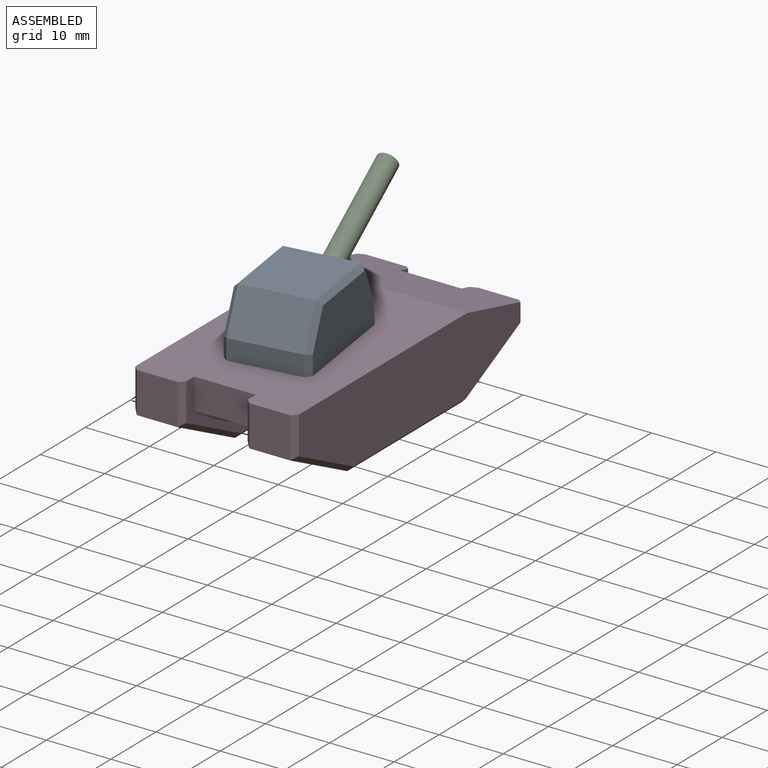
[diagram: assembled view]
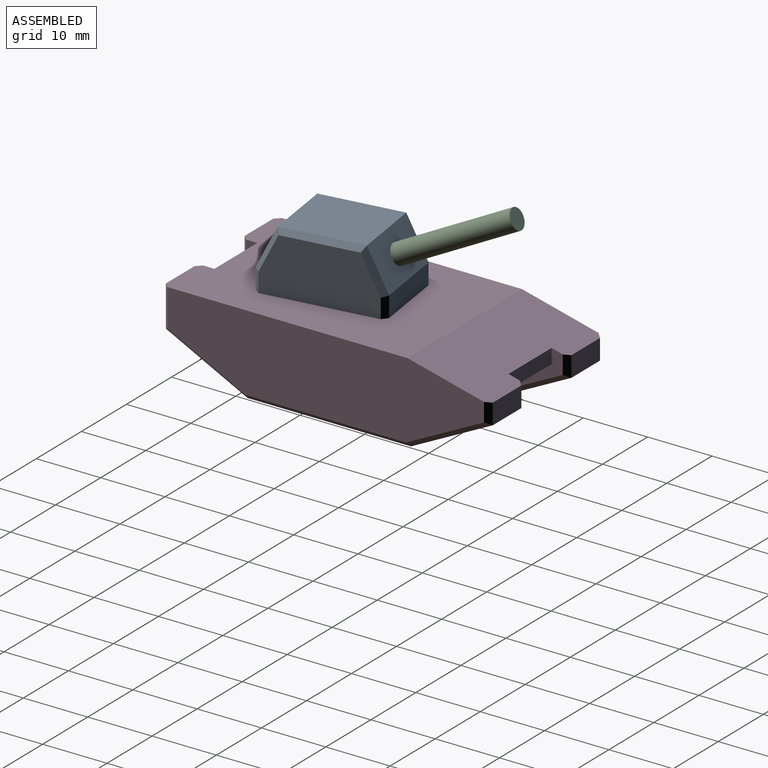
[diagram: assembled view, second angle]
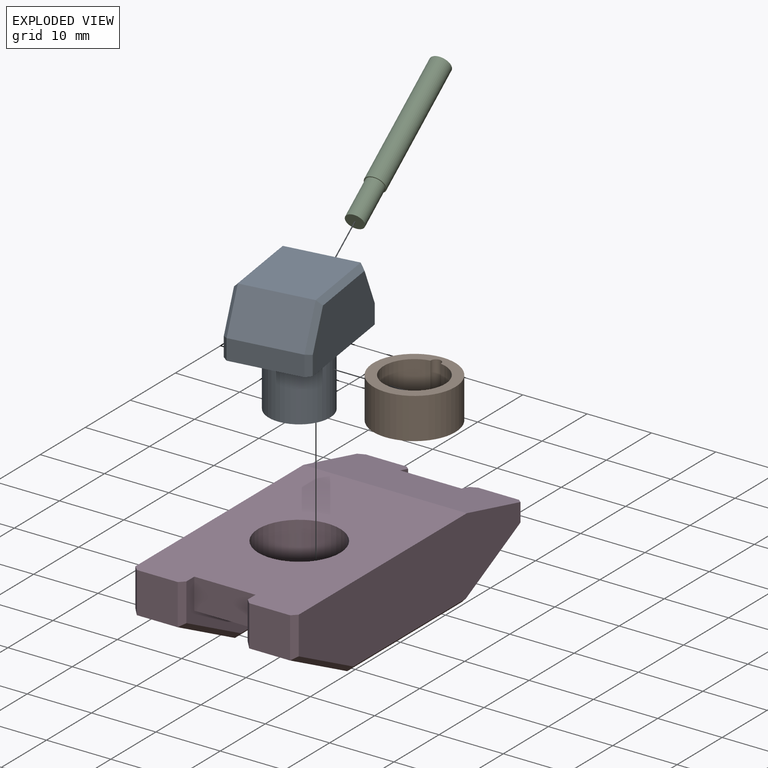
[diagram: exploded view]
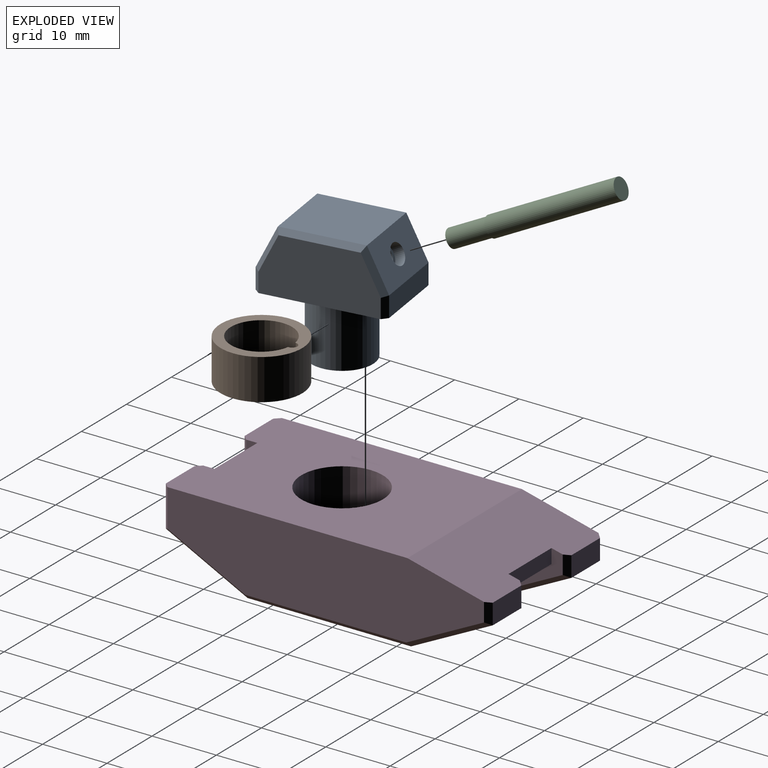
[diagram: exploded view, second angle]
ASSEMBLY  parts=4 mates=4
PART A: 24 faces, bbox 12.7x19.1x19.1 mm
  f0: plane 19.05x12.7mm, normal (0,0,-1), area 169.4mm2, adj f2,f3,f4,f5,f6,f10,f14,f15
  f1: plane 9.53x9.53mm, normal (0,0,-1), area 71.3mm2, adj f2
  f2: cylinder r=4.76mm len=9.53mm, axis (0,0,1), area 285mm2, adj f0,f1
  f3: plane 17.46x8.73mm, normal (-1,0,0), area 136mm2, adj f0,f10,f11,f12,f13,f14
  f4: plane 11.11x3.18mm, normal (0,1,0), area 35.3mm2, adj f0,f8,f10,f19
  f5: plane 17.46x8.73mm, normal (1,0,0), area 136mm2, adj f0,f15,f16,f17,f18,f19
  f6: plane 11.11x3.18mm, normal (0,-1,0), area 35.3mm2, adj f0,f9,f14,f15
  f7: plane 12.7x11.11mm, normal (0,0,1), area 141.1mm2, adj f8,f9,f12,f17
  f8: plane 11.11x6.35mm, normal (0,0.89,0.45), area 78.9mm2, adj f4,f7,f11,f18
  f9: plane 11.11x6.35mm, normal (0,-0.89,0.45), area 71mm2, adj f6,f7,f13,f16,f22
  f10: plane 3.18x0.79mm, normal (-0.71,0.71,0), area 3.5mm2, adj f0,f3,f4,f11
  f11: plane 6.54x3.67mm, normal (-0.71,0.63,0.32), area 7.6mm2, adj f3,f8,f10,f12
  f12: plane 12.7x0.79mm, normal (-0.71,0,0.71), area 13.7mm2, adj f3,f7,f11,f13
  f13: plane 6.54x3.67mm, normal (-0.71,-0.63,0.32), area 7.6mm2, adj f3,f9,f12,f14
  f14: plane 3.18x0.79mm, normal (-0.71,-0.71,0), area 3.5mm2, adj f0,f3,f6,f13
  f15: plane 3.18x0.79mm, normal (0.71,-0.71,0), area 3.5mm2, adj f0,f5,f6,f16
  f16: plane 6.54x3.67mm, normal (0.71,-0.63,0.32), area 7.6mm2, adj f5,f9,f15,f17
  f17: plane 12.7x0.79mm, normal (0.71,0,0.71), area 13.7mm2, adj f5,f7,f16,f18
  f18: plane 6.54x3.67mm, normal (0.71,0.63,0.32), area 7.6mm2, adj f5,f8,f17,f19
  f19: plane 3.18x0.79mm, normal (0.71,0.71,0), area 3.5mm2, adj f0,f4,f5,f18
  f20: cylinder r=1.13mm len=8.11mm, axis (0,-0.89,0.45), area 56.4mm2, adj f21,f23
  f21: plane 3.18x2.84mm, normal (0,-0.89,0.45), area 3.9mm2, adj f20,f22
  f22: cylinder r=1.59mm len=3.55mm, axis (0,-0.89,0.45), area 15.8mm2, adj f9,f21
  f23: cone r=0mm half-angle=59deg, axis (0,-0.89,0.45), area 4.7mm2, adj f20
PART B: 5 faces, bbox 12.7x12.7x6.4 mm
  f0: cylinder r=4.76mm len=9.53mm, axis (0,0,-1), area 179.9mm2, adj f1,f3,f4
  f1: cylinder r=0.79mm len=6.35mm, axis (0,0,-1), area 16.7mm2, adj f0,f3,f4
  f2: cylinder r=6.35mm len=12.7mm, axis (0,0,-1), area 253.4mm2, adj f3,f4
  f3: plane 12.7x12.7mm, normal (0,0,1), area 54.4mm2, adj f0,f1,f2
  f4: plane 12.7x12.7mm, normal (0,0,-1), area 54.4mm2, adj f0,f1,f2
PART C: 5 faces, bbox 3.2x27x3.2 mm
  f0: plane 3.18x3.18mm, normal (0,-1,0), area 7.9mm2, adj f1
  f1: cylinder r=1.59mm len=20.64mm, axis (0,1,0), area 205.8mm2, adj f0,f2
  f2: plane 3.18x3.18mm, normal (0,1,0), area 1.6mm2, adj f1,f3
  f3: cylinder r=1.42mm len=6.35mm, axis (0,1,0), area 56.8mm2, adj f2,f4
  f4: plane 2.85x2.85mm, normal (0,1,0), area 6.4mm2, adj f3
PART D: 43 faces, bbox 25.4x50.8x12.7 mm
  f0: plane 6.35x6.35mm, normal (0,-1,0), area 40.3mm2, adj f7,f10,f28,f33
  f1: plane 6.35x3.18mm, normal (0,1,0), area 20.2mm2, adj f4,f9,f23,f42
  f2: plane 10.76x9.53mm, normal (0,0.45,-0.89), area 114.6mm2, adj f3,f18,f19,f21
  f3: plane 24.2x9.53mm, normal (0,0,-1), area 230.5mm2, adj f2,f18,f19,f20
  f4: plane 12.7x6.35mm, normal (0,0.45,-0.89), area 90.2mm2, adj f1,f12,f24,f41
  f5: plane 12.7x6.35mm, normal (0,-0.45,-0.89), area 90.2mm2, adj f11,f12,f26,f39
  f6: plane 25.4x6.35mm, normal (0,0,-1), area 161.3mm2, adj f7,f8,f30,f35
  f7: plane 12.7x6.35mm, normal (0,-0.45,-0.89), area 90.2mm2, adj f0,f6,f29,f34
  f8: plane 12.7x6.35mm, normal (0,0.45,-0.89), area 90.2mm2, adj f6,f13,f31,f36
  f9: plane 25.4x12.7mm, normal (0,0.24,0.97), area 306.3mm2, adj f1,f10,f13,f14,f15,f18,f19,f21
  f10: plane 38.1x25.4mm, normal (0,0,1), area 815.6mm2, adj f0,f9,f11,f14,f15,f16,f18,f19
  f11: plane 6.35x6.35mm, normal (0,-1,0), area 40.3mm2, adj f5,f10,f27,f38
  f12: plane 25.4x6.35mm, normal (0,0,-1), area 161.3mm2, adj f4,f5,f25,f40
  f13: plane 6.35x3.18mm, normal (0,1,0), area 20.2mm2, adj f8,f9,f32,f37
  f14: plane 49.21x11.91mm, normal (1,0,0), area 495.1mm2, adj f9,f10,f38,f39,f40,f41,f42
  f15: plane 49.21x11.91mm, normal (-1,0,0), area 495.1mm2, adj f9,f10,f33,f34,f35,f36,f37
  f16: cylinder r=6.35mm len=12.7mm, axis (0,0,1), area 380mm2, adj f10,f17
  f17: plane 12.7x12.7mm, normal (0,0,1), area 126.7mm2, adj f16
  f18: plane 49.21x11.91mm, normal (-1,0,0), area 101.4mm2, adj f2,f3,f9,f10,f20,f21,f22,f23
  f19: plane 49.21x11.91mm, normal (1,0,0), area 101.4mm2, adj f2,f3,f9,f10,f20,f21,f22,f28
  f20: plane 10.76x9.53mm, normal (0,-0.45,-0.89), area 114.6mm2, adj f3,f18,f19,f22
  f21: plane 9.53x2.24mm, normal (0,1,0), area 21.3mm2, adj f2,f9,f18,f19
  f22: plane 9.53x4.78mm, normal (0,-1,0), area 45.5mm2, adj f10,f18,f19,f20
  f23: plane 3.37x0.79mm, normal (-0.71,0.71,0), area 3.4mm2, adj f1,f9,f18,f24
  f24: plane 12.89x6.84mm, normal (-0.71,0.32,-0.63), area 15.6mm2, adj f4,f18,f23,f25
  f25: plane 25.4x0.79mm, normal (-0.71,0,-0.71), area 28.3mm2, adj f12,f18,f24,f26
  f26: plane 12.89x6.84mm, normal (-0.71,-0.32,-0.63), area 15.6mm2, adj f5,f18,f25,f27
  f27: plane 6.35x0.79mm, normal (-0.71,-0.71,0), area 6.9mm2, adj f10,f11,f18,f26
  f28: plane 6.35x0.79mm, normal (0.71,-0.71,0), area 6.9mm2, adj f0,f10,f19,f29
  f29: plane 12.89x6.84mm, normal (0.71,-0.32,-0.63), area 15.6mm2, adj f7,f19,f28,f30
  f30: plane 25.4x0.79mm, normal (0.71,0,-0.71), area 28.3mm2, adj f6,f19,f29,f31
  f31: plane 12.89x6.84mm, normal (0.71,0.32,-0.63), area 15.6mm2, adj f8,f19,f30,f32
  f32: plane 3.37x0.79mm, normal (0.71,0.71,0), area 3.4mm2, adj f9,f13,f19,f31
  f33: plane 6.35x0.79mm, normal (-0.71,-0.71,0), area 6.9mm2, adj f0,f10,f15,f34
  f34: plane 12.89x6.84mm, normal (-0.71,-0.32,-0.63), area 15.6mm2, adj f7,f15,f33,f35
  f35: plane 25.4x0.79mm, normal (-0.71,0,-0.71), area 28.3mm2, adj f6,f15,f34,f36
  f36: plane 12.89x6.84mm, normal (-0.71,0.32,-0.63), area 15.6mm2, adj f8,f15,f35,f37
  f37: plane 3.37x0.79mm, normal (-0.71,0.71,0), area 3.4mm2, adj f9,f13,f15,f36
  f38: plane 6.35x0.79mm, normal (0.71,-0.71,0), area 6.9mm2, adj f10,f11,f14,f39
  f39: plane 12.89x6.84mm, normal (0.71,-0.32,-0.63), area 15.6mm2, adj f5,f14,f38,f40
  f40: plane 25.4x0.79mm, normal (0.71,0,-0.71), area 28.3mm2, adj f12,f14,f39,f41
  f41: plane 12.89x6.84mm, normal (0.71,0.32,-0.63), area 15.6mm2, adj f4,f14,f40,f42
  f42: plane 3.37x0.79mm, normal (0.71,0.71,0), area 3.4mm2, adj f1,f9,f14,f41
PLACE A rot(axis=(0,0,-1),171.9deg) t=(8.73,-6.35,3.18)mm
PLACE B t=(8.73,-6.35,6.35)mm
PLACE C rot(axis=(-0.32,0.2,-0.93),164.4deg) t=(5.19,18.37,27.57)mm
PLACE D t=(-3.97,-25.4,0)mm
MATE planar B.f3 <-> D.f10  axis (0,0,1) through (9.52,-1.65,12.7)mm
MATE slider D.f16 <-> B.f2  axis (0,0,1) through (8.73,-6.35,12.7)mm
MATE revolute A.f20 <-> C.f1  axis (-0.13,0.89,0.45) through (7.81,0.1,18.34)mm
MATE revolute B.f0 <-> A.f2  axis (0,0,1) through (8.73,-6.35,12.7)mm
